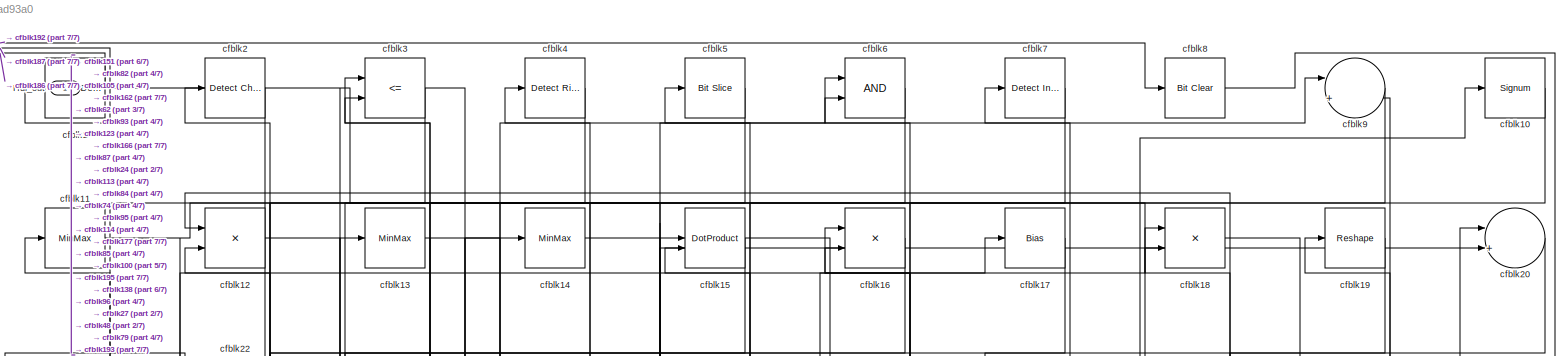
[diagram: root canvas - part 1/7, full width, top band]
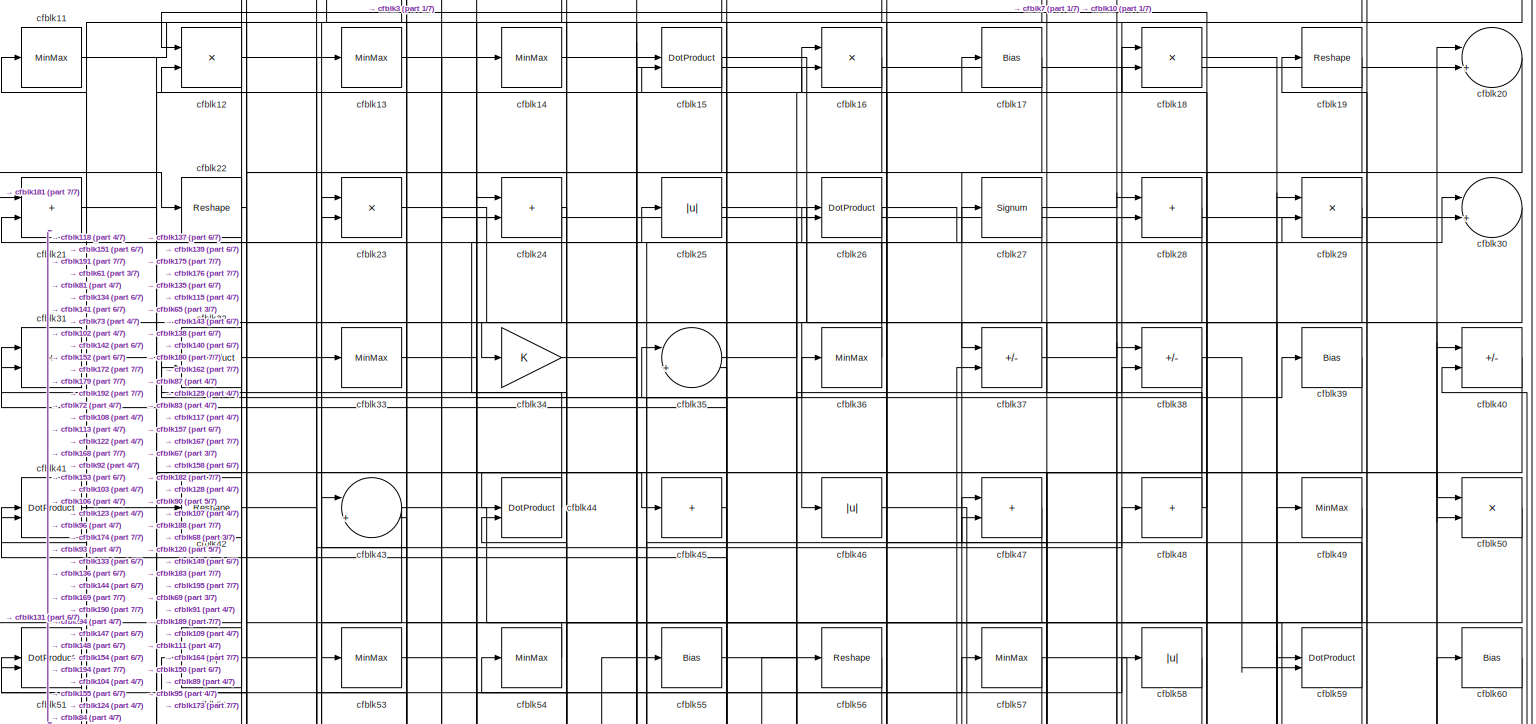
[diagram: root canvas - part 2/7, full width, top band]
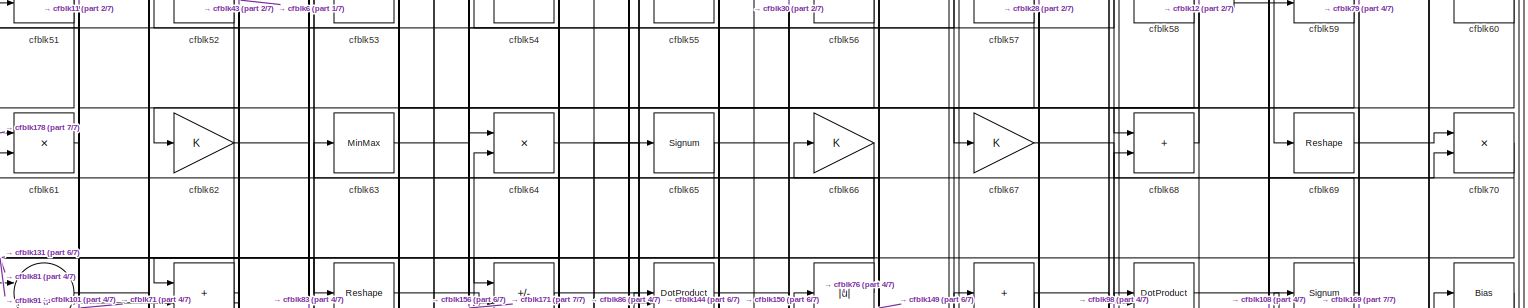
[diagram: root canvas - part 3/7, full width, top band]
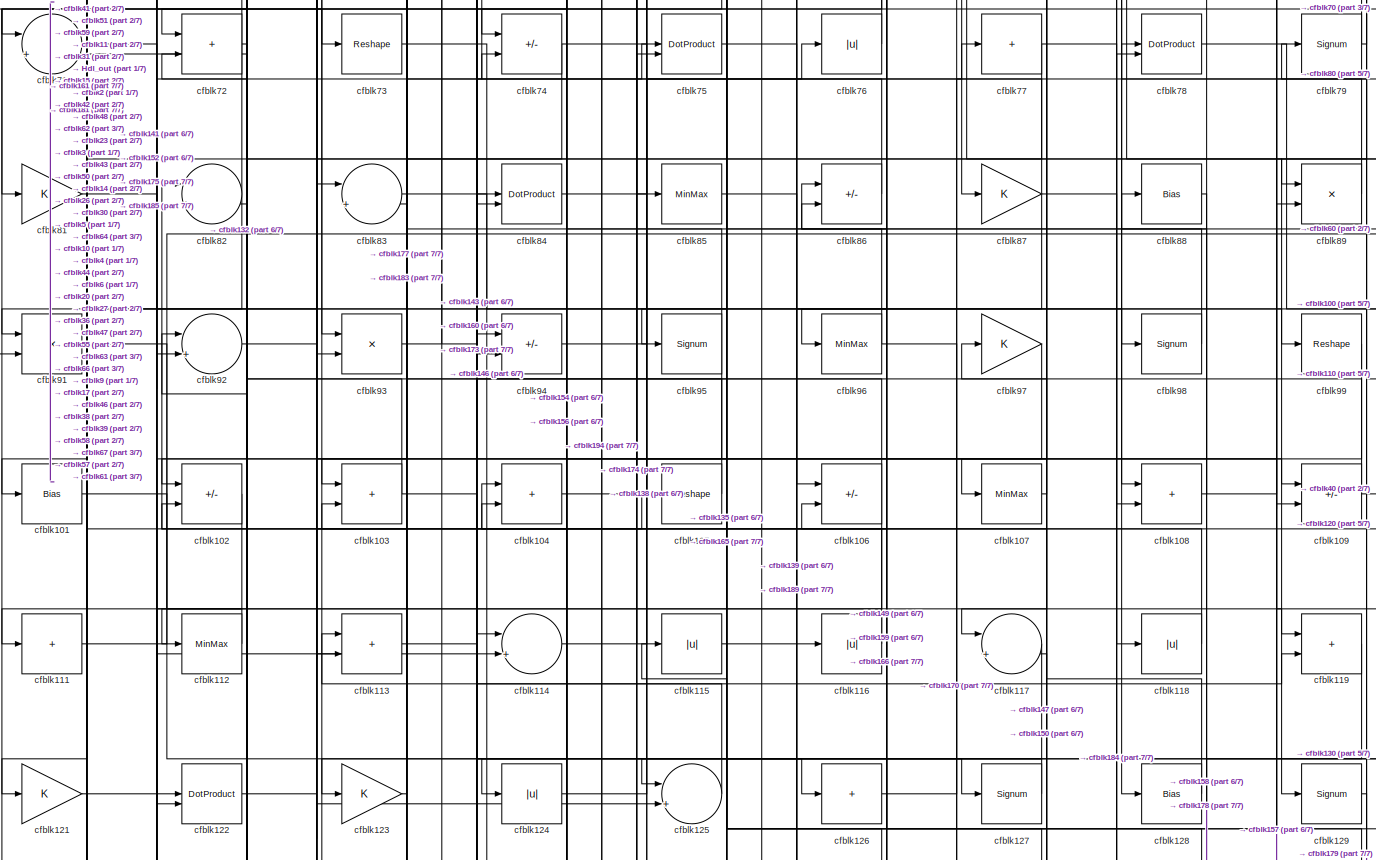
[diagram: root canvas - part 4/7, full width, middle band]
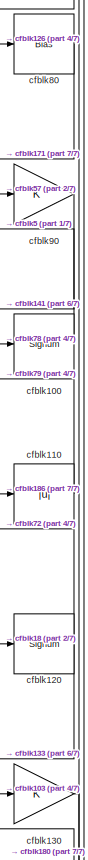
[diagram: root canvas - part 5/7, middle right region]
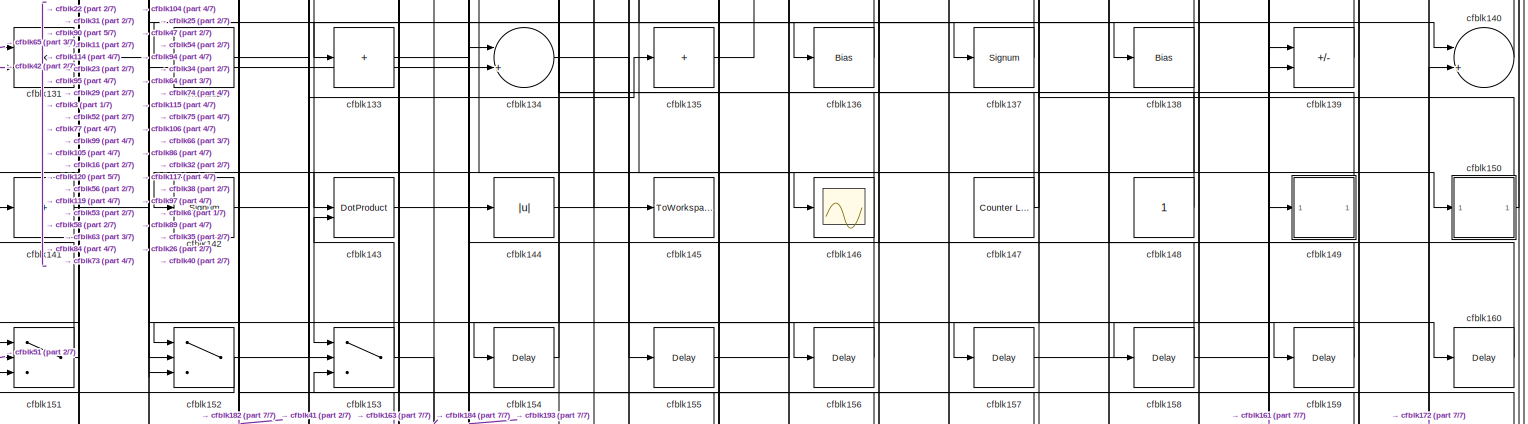
[diagram: root canvas - part 6/7, full width, bottom band]
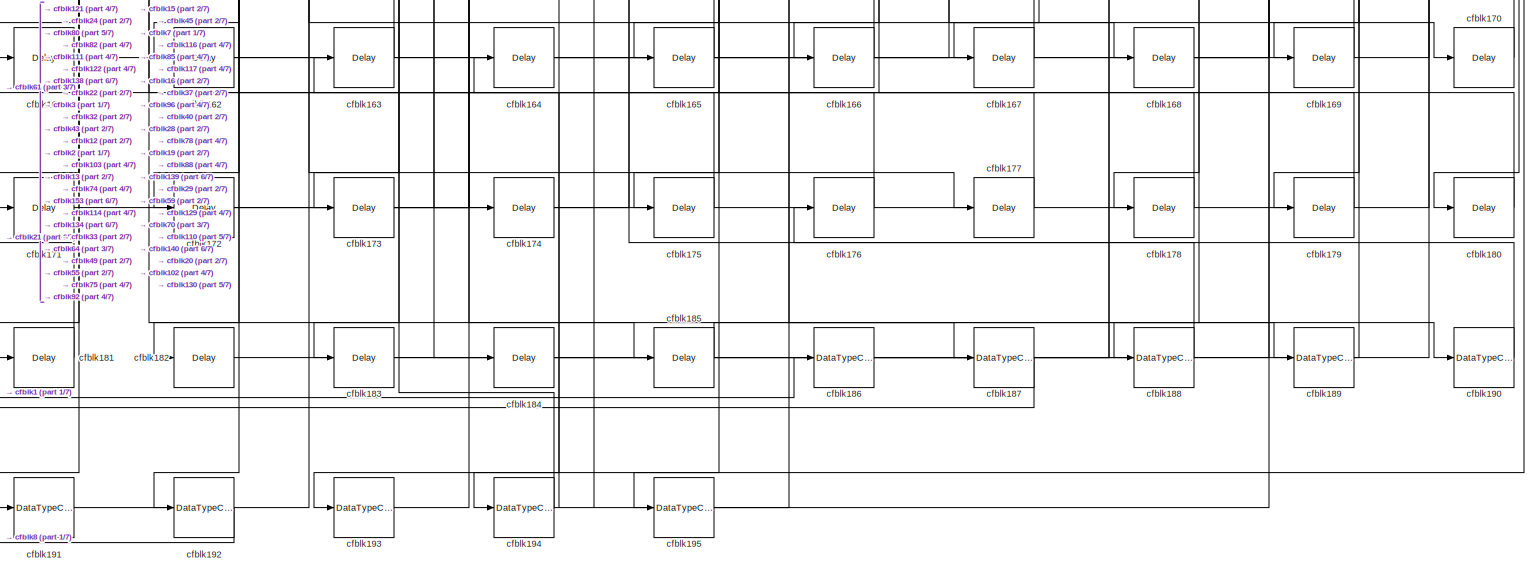
[diagram: root canvas - part 7/7, full width, bottom band]
MODEL slx_8a5da6ad93a0
KIND model
CONFIG AbsTol = auto
CONFIG EnableMultiTasking = off
CONFIG FixedStep = auto
CONFIG MaxStep = auto
CONFIG MinStep = auto
CONFIG RelTol = 1e-3
CONFIG SampleTimeConstraint = Unconstrained
CONFIG SolverName = VariableStepAuto
CONFIG StartTime = 0.0
CONFIG StopTime = 10.0
BLOCK [Outport] Hdl_out
  OutDataTypeStr = uint8
BLOCK [Reference] cfblk1  REF=simulink/Logic and Bit
Operations/Detect
Decrease
  LibrarySourceBlock = hdlsllib/Logic and Bit\nOperations/Detect\nDecrease
  SourceBlock = simulink/Logic and Bit\nOperations/Detect\nDecrease
  SourceType = Detect Decrease
BLOCK [Signum] cfblk10
BLOCK [Signum] cfblk100
BLOCK [Bias] cfblk101
  Bias = 0.0
  SaturateOnIntegerOverflow = off
BLOCK [Sum] cfblk102
  IconShape = rectangular
  Inputs = +-
  OutDataTypeStr = uint8
BLOCK [Sum] cfblk103
  IconShape = rectangular
  OutDataTypeStr = uint8
BLOCK [Sum] cfblk104
  IconShape = rectangular
  OutDataTypeStr = uint8
BLOCK [Reshape] cfblk105
BLOCK [Sum] cfblk106
  IconShape = rectangular
  Inputs = +-
  OutDataTypeStr = uint8
BLOCK [MinMax] cfblk107
  OutDataTypeStr = uint8
BLOCK [Sum] cfblk108
  IconShape = rectangular
  OutDataTypeStr = uint8
BLOCK [Sum] cfblk109
  IconShape = rectangular
  Inputs = +-
  OutDataTypeStr = uint8
BLOCK [MinMax] cfblk11
  OutDataTypeStr = uint8
BLOCK [Abs] cfblk110
  OutDataTypeStr = uint8
  SaturateOnIntegerOverflow = off
BLOCK [Sum] cfblk111
  IconShape = rectangular
  Inputs = +
  OutDataTypeStr = uint8
BLOCK [MinMax] cfblk112
  OutDataTypeStr = uint8
BLOCK [Sum] cfblk113
  IconShape = rectangular
  OutDataTypeStr = uint8
BLOCK [Sum] cfblk114
  Inputs = |++
  OutDataTypeStr = uint8
BLOCK [Abs] cfblk115
  OutDataTypeStr = uint8
  SaturateOnIntegerOverflow = off
BLOCK [Abs] cfblk116
  OutDataTypeStr = uint8
  SaturateOnIntegerOverflow = off
BLOCK [Sum] cfblk117
  Inputs = |++
  OutDataTypeStr = uint8
BLOCK [Abs] cfblk118
  OutDataTypeStr = uint8
  SaturateOnIntegerOverflow = off
BLOCK [Sum] cfblk119
  IconShape = rectangular
  OutDataTypeStr = uint8
BLOCK [Product] cfblk12
  Inputs = */
  OutDataTypeStr = uint8
  RndMeth = Zero
  SaturateOnIntegerOverflow = on
BLOCK [Signum] cfblk120
BLOCK [Gain] cfblk121
  OutDataTypeStr = uint8
BLOCK [DotProduct] cfblk122
  OutDataTypeStr = uint8
BLOCK [Gain] cfblk123
  OutDataTypeStr = uint8
BLOCK [Abs] cfblk124
  OutDataTypeStr = uint8
  SaturateOnIntegerOverflow = off
BLOCK [Sum] cfblk125
  Inputs = |++
  OutDataTypeStr = uint8
BLOCK [Sum] cfblk126
  IconShape = rectangular
  Inputs = +
  OutDataTypeStr = uint8
BLOCK [Signum] cfblk127
BLOCK [Bias] cfblk128
  Bias = 0.0
  SaturateOnIntegerOverflow = off
BLOCK [Signum] cfblk129
BLOCK [MinMax] cfblk13
  OutDataTypeStr = uint8
BLOCK [Gain] cfblk130
  OutDataTypeStr = uint8
BLOCK [Product] cfblk131
  Inputs = */
  OutDataTypeStr = uint8
  RndMeth = Zero
  SaturateOnIntegerOverflow = on
BLOCK [Sum] cfblk132
  IconShape = rectangular
  Inputs = +
  OutDataTypeStr = uint8
BLOCK [Sum] cfblk133
  IconShape = rectangular
  Inputs = +
  OutDataTypeStr = uint8
BLOCK [Sum] cfblk134
  Inputs = |++
  OutDataTypeStr = uint8
BLOCK [Sum] cfblk135
  IconShape = rectangular
  Inputs = +
  OutDataTypeStr = uint8
BLOCK [Bias] cfblk136
  Bias = 0.0
  SaturateOnIntegerOverflow = off
BLOCK [Signum] cfblk137
BLOCK [Bias] cfblk138
  Bias = 0.0
  SaturateOnIntegerOverflow = off
BLOCK [Sum] cfblk139
  IconShape = rectangular
  Inputs = +-
  OutDataTypeStr = uint8
BLOCK [MinMax] cfblk14
  OutDataTypeStr = uint8
BLOCK [Sum] cfblk140
  Inputs = |++
  OutDataTypeStr = uint8
BLOCK [Sum] cfblk141
  IconShape = rectangular
  Inputs = +
  OutDataTypeStr = uint8
BLOCK [Signum] cfblk142
BLOCK [DotProduct] cfblk143
  OutDataTypeStr = uint8
BLOCK [Abs] cfblk144
  OutDataTypeStr = uint8
  SaturateOnIntegerOverflow = off
BLOCK [ToWorkspace] cfblk145
  MaxDataPoints = inf
  SampleTime = -1
  SaveFormat = Timeseries
  VariableName = simout
BLOCK [Scope] cfblk146
  Floating = off
  NumInputPorts = 1
  ScopeSpecificationString = Simulink.scopes.TimeScopeBlockCfg('CurrentConfiguration', extmgr.ConfigurationSet(extmgr.Configuration('Core','General UI',true),extmgr.Configuration('Core','Source UI',true),extmgr.Configuration('Sources','WiredSimulink',true,'DataLoggingVariableName','ScopeData2','DataLoggingSaveFormat','Array','DataLoggingLimitDataPoints',true,'DataLoggingDecimation','1'),extmgr.Configuration('Visuals','Time Do...<+868ch>
BLOCK [Reference] cfblk147  REF=hdlsllib/Sources/Counter
Limited
  SourceBlock = hdlsllib/Sources/Counter\nLimited
  SourceType = Counter Limited
BLOCK [Constant] cfblk148
  OutDataTypeStr = uint8
  SampleTime = -1
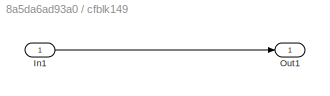
BLOCK [SubSystem] cfblk149
  LibrarySourceBlock = hdlsllib/Ports &\nSubsystems/Subsystem
BLOCK [Inport] cfblk149/In1
BLOCK [Outport] cfblk149/Out1
BLOCK [DotProduct] cfblk15
  OutDataTypeStr = uint8
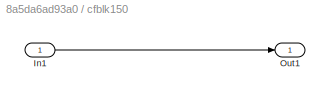
BLOCK [SubSystem] cfblk150
  LibrarySourceBlock = hdlsllib/Ports &\nSubsystems/Subsystem
BLOCK [Inport] cfblk150/In1
BLOCK [Outport] cfblk150/Out1
BLOCK [Switch] cfblk151
  InputSameDT = off
  OutDataTypeStr = uint8
  SaturateOnIntegerOverflow = off
BLOCK [Switch] cfblk152
  InputSameDT = off
  OutDataTypeStr = uint8
  SaturateOnIntegerOverflow = off
BLOCK [Switch] cfblk153
  InputSameDT = off
  OutDataTypeStr = uint8
  SaturateOnIntegerOverflow = off
BLOCK [Delay] cfblk154
  InputPortMap = u0
  SampleTime = 1
BLOCK [Delay] cfblk155
  InputPortMap = u0
  SampleTime = 1
BLOCK [Delay] cfblk156
  InputPortMap = u0
  SampleTime = 1
BLOCK [Delay] cfblk157
  InputPortMap = u0
  SampleTime = 1
BLOCK [Delay] cfblk158
  InputPortMap = u0
  SampleTime = 1
BLOCK [Delay] cfblk159
  InputPortMap = u0
  SampleTime = 1
BLOCK [Product] cfblk16
  Inputs = */
  OutDataTypeStr = uint8
  RndMeth = Zero
  SaturateOnIntegerOverflow = on
BLOCK [Delay] cfblk160
  InputPortMap = u0
  SampleTime = 1
BLOCK [Delay] cfblk161
  InputPortMap = u0
  SampleTime = 1
BLOCK [Delay] cfblk162
  InputPortMap = u0
  SampleTime = 1
BLOCK [Delay] cfblk163
  InputPortMap = u0
  SampleTime = 1
BLOCK [Delay] cfblk164
  InputPortMap = u0
  SampleTime = 1
BLOCK [Delay] cfblk165
  InputPortMap = u0
  SampleTime = 1
BLOCK [Delay] cfblk166
  InputPortMap = u0
  SampleTime = 1
BLOCK [Delay] cfblk167
  InputPortMap = u0
  SampleTime = 1
BLOCK [Delay] cfblk168
  InputPortMap = u0
  SampleTime = 1
BLOCK [Delay] cfblk169
  InputPortMap = u0
  SampleTime = 1
BLOCK [Bias] cfblk17
  Bias = 0.0
  SaturateOnIntegerOverflow = off
BLOCK [Delay] cfblk170
  InputPortMap = u0
  SampleTime = 1
BLOCK [Delay] cfblk171
  InputPortMap = u0
  SampleTime = 1
BLOCK [Delay] cfblk172
  InputPortMap = u0
  SampleTime = 1
BLOCK [Delay] cfblk173
  InputPortMap = u0
  SampleTime = 1
BLOCK [Delay] cfblk174
  InputPortMap = u0
  SampleTime = 1
BLOCK [Delay] cfblk175
  InputPortMap = u0
  SampleTime = 1
BLOCK [Delay] cfblk176
  InputPortMap = u0
  SampleTime = 1
BLOCK [Delay] cfblk177
  InputPortMap = u0
  SampleTime = 1
BLOCK [Delay] cfblk178
  InputPortMap = u0
  SampleTime = 1
BLOCK [Delay] cfblk179
  InputPortMap = u0
  SampleTime = 1
BLOCK [Product] cfblk18
  Inputs = */
  OutDataTypeStr = uint8
  RndMeth = Zero
  SaturateOnIntegerOverflow = on
BLOCK [Delay] cfblk180
  InputPortMap = u0
  SampleTime = 1
BLOCK [Delay] cfblk181
  InputPortMap = u0
  SampleTime = 1
BLOCK [Delay] cfblk182
  InputPortMap = u0
  SampleTime = 1
BLOCK [Delay] cfblk183
  InputPortMap = u0
  SampleTime = 1
BLOCK [Delay] cfblk184
  InputPortMap = u0
  SampleTime = 1
BLOCK [Delay] cfblk185
  InputPortMap = u0
  SampleTime = 1
BLOCK [DataTypeConversion] cfblk186
  OutDataTypeStr = uint8
  RndMeth = Floor
  SaturateOnIntegerOverflow = off
BLOCK [DataTypeConversion] cfblk187
  OutDataTypeStr = uint8
  RndMeth = Floor
  SaturateOnIntegerOverflow = off
BLOCK [DataTypeConversion] cfblk188
  OutDataTypeStr = uint8
  RndMeth = Floor
  SaturateOnIntegerOverflow = off
BLOCK [DataTypeConversion] cfblk189
  OutDataTypeStr = uint8
  RndMeth = Floor
  SaturateOnIntegerOverflow = off
BLOCK [Reshape] cfblk19
BLOCK [DataTypeConversion] cfblk190
  OutDataTypeStr = uint8
  RndMeth = Floor
  SaturateOnIntegerOverflow = off
BLOCK [DataTypeConversion] cfblk191
  OutDataTypeStr = uint8
  RndMeth = Floor
  SaturateOnIntegerOverflow = off
BLOCK [DataTypeConversion] cfblk192
  OutDataTypeStr = uint8
  RndMeth = Floor
  SaturateOnIntegerOverflow = off
BLOCK [DataTypeConversion] cfblk193
  OutDataTypeStr = uint8
  RndMeth = Floor
  SaturateOnIntegerOverflow = off
BLOCK [DataTypeConversion] cfblk194
  OutDataTypeStr = uint8
  RndMeth = Floor
  SaturateOnIntegerOverflow = off
BLOCK [DataTypeConversion] cfblk195
  OutDataTypeStr = uint8
  RndMeth = Floor
  SaturateOnIntegerOverflow = off
BLOCK [Reference] cfblk2  REF=simulink/Logic and Bit
Operations/Detect
Change
  LibrarySourceBlock = hdlsllib/Logic and Bit\nOperations/Detect\nChange
  SourceBlock = simulink/Logic and Bit\nOperations/Detect\nChange
  SourceType = Detect Change
BLOCK [Sum] cfblk20
  Inputs = |++
  OutDataTypeStr = uint8
BLOCK [Sum] cfblk21
  IconShape = rectangular
  OutDataTypeStr = uint8
BLOCK [Reshape] cfblk22
BLOCK [Product] cfblk23
  Inputs = */
  OutDataTypeStr = uint8
  RndMeth = Zero
  SaturateOnIntegerOverflow = on
BLOCK [Sum] cfblk24
  IconShape = rectangular
  OutDataTypeStr = uint8
BLOCK [Abs] cfblk25
  OutDataTypeStr = uint8
  SaturateOnIntegerOverflow = off
BLOCK [DotProduct] cfblk26
  OutDataTypeStr = uint8
BLOCK [Signum] cfblk27
BLOCK [Sum] cfblk28
  IconShape = rectangular
  OutDataTypeStr = uint8
BLOCK [Product] cfblk29
  Inputs = */
  OutDataTypeStr = uint8
  RndMeth = Zero
  SaturateOnIntegerOverflow = on
BLOCK [RelationalOperator] cfblk3
  InputSameDT = off
  Operator = <=
  OutDataTypeStr = boolean
BLOCK [Sum] cfblk30
  Inputs = |++
  OutDataTypeStr = uint8
BLOCK [Sum] cfblk31
  IconShape = rectangular
  OutDataTypeStr = uint8
BLOCK [DotProduct] cfblk32
  OutDataTypeStr = uint8
BLOCK [MinMax] cfblk33
  OutDataTypeStr = uint8
BLOCK [Gain] cfblk34
  OutDataTypeStr = uint8
BLOCK [Sum] cfblk35
  Inputs = |++
  OutDataTypeStr = uint8
BLOCK [MinMax] cfblk36
  OutDataTypeStr = uint8
BLOCK [Sum] cfblk37
  IconShape = rectangular
  Inputs = +-
  OutDataTypeStr = uint8
BLOCK [Sum] cfblk38
  IconShape = rectangular
  Inputs = +-
  OutDataTypeStr = uint8
BLOCK [Bias] cfblk39
  Bias = 0.0
  SaturateOnIntegerOverflow = off
BLOCK [Reference] cfblk4  REF=hdlsllib/Logic and Bit
Operations/Detect Rise
Positive
  SourceBlock = hdlsllib/Logic and Bit\nOperations/Detect Rise\nPositive
  SourceType = Detect Rise Positive
BLOCK [Sum] cfblk40
  IconShape = rectangular
  Inputs = +-
  OutDataTypeStr = uint8
BLOCK [DotProduct] cfblk41
  OutDataTypeStr = uint8
BLOCK [Reshape] cfblk42
BLOCK [Sum] cfblk43
  Inputs = |++
  OutDataTypeStr = uint8
BLOCK [DotProduct] cfblk44
  OutDataTypeStr = uint8
BLOCK [Sum] cfblk45
  IconShape = rectangular
  Inputs = +
  OutDataTypeStr = uint8
BLOCK [Abs] cfblk46
  OutDataTypeStr = uint8
  SaturateOnIntegerOverflow = off
BLOCK [Sum] cfblk47
  IconShape = rectangular
  OutDataTypeStr = uint8
BLOCK [Sum] cfblk48
  IconShape = rectangular
  Inputs = +
  OutDataTypeStr = uint8
BLOCK [MinMax] cfblk49
  OutDataTypeStr = uint8
BLOCK [Reference] cfblk5  REF=hdlsllib/Logic and Bit
Operations/Bit Slice
  SourceBlock = hdlsllib/Logic and Bit\nOperations/Bit Slice
  SourceType = Bit Slice
BLOCK [Product] cfblk50
  Inputs = */
  OutDataTypeStr = uint8
  RndMeth = Zero
  SaturateOnIntegerOverflow = on
BLOCK [DotProduct] cfblk51
  OutDataTypeStr = uint8
BLOCK [Abs] cfblk52
  OutDataTypeStr = uint8
  SaturateOnIntegerOverflow = off
BLOCK [MinMax] cfblk53
  OutDataTypeStr = uint8
BLOCK [MinMax] cfblk54
  OutDataTypeStr = uint8
BLOCK [Bias] cfblk55
  Bias = 0.0
  SaturateOnIntegerOverflow = off
BLOCK [Reshape] cfblk56
BLOCK [MinMax] cfblk57
  OutDataTypeStr = uint8
BLOCK [Abs] cfblk58
  OutDataTypeStr = uint8
  SaturateOnIntegerOverflow = off
BLOCK [DotProduct] cfblk59
  OutDataTypeStr = uint8
BLOCK [Logic] cfblk6
  AllPortsSameDT = off
  OutDataTypeStr = boolean
BLOCK [Bias] cfblk60
  Bias = 0.0
  SaturateOnIntegerOverflow = off
BLOCK [Product] cfblk61
  Inputs = */
  OutDataTypeStr = uint8
  RndMeth = Zero
  SaturateOnIntegerOverflow = on
BLOCK [Gain] cfblk62
  OutDataTypeStr = uint8
BLOCK [MinMax] cfblk63
  OutDataTypeStr = uint8
BLOCK [Product] cfblk64
  Inputs = */
  OutDataTypeStr = uint8
  RndMeth = Zero
  SaturateOnIntegerOverflow = on
BLOCK [Signum] cfblk65
BLOCK [Gain] cfblk66
  OutDataTypeStr = uint8
BLOCK [Gain] cfblk67
  OutDataTypeStr = uint8
BLOCK [Sum] cfblk68
  IconShape = rectangular
  OutDataTypeStr = uint8
BLOCK [Reshape] cfblk69
BLOCK [Reference] cfblk7  REF=simulink/Logic and Bit
Operations/Detect
Increase
  LibrarySourceBlock = hdlsllib/Logic and Bit\nOperations/Detect\nIncrease
  SourceBlock = simulink/Logic and Bit\nOperations/Detect\nIncrease
  SourceType = Detect Increase
BLOCK [Product] cfblk70
  Inputs = */
  OutDataTypeStr = uint8
  RndMeth = Zero
  SaturateOnIntegerOverflow = on
BLOCK [Sum] cfblk71
  Inputs = |++
  OutDataTypeStr = uint8
BLOCK [Sum] cfblk72
  IconShape = rectangular
  OutDataTypeStr = uint8
BLOCK [Reshape] cfblk73
BLOCK [Sum] cfblk74
  IconShape = rectangular
  Inputs = +-
  OutDataTypeStr = uint8
BLOCK [DotProduct] cfblk75
  OutDataTypeStr = uint8
BLOCK [Abs] cfblk76
  OutDataTypeStr = uint8
  SaturateOnIntegerOverflow = off
BLOCK [Sum] cfblk77
  IconShape = rectangular
  Inputs = +
  OutDataTypeStr = uint8
BLOCK [DotProduct] cfblk78
  OutDataTypeStr = uint8
BLOCK [Signum] cfblk79
BLOCK [Reference] cfblk8  REF=simulink/Logic and Bit
Operations/Bit Clear
  LibrarySourceBlock = hdlsllib/Logic and Bit\nOperations/Bit Clear
  SourceBlock = simulink/Logic and Bit\nOperations/Bit Clear
  SourceType = Bit Clear
BLOCK [Bias] cfblk80
  Bias = 0.0
  SaturateOnIntegerOverflow = off
BLOCK [Gain] cfblk81
  OutDataTypeStr = uint8
BLOCK [Sum] cfblk82
  Inputs = |++
  OutDataTypeStr = uint8
BLOCK [Sum] cfblk83
  Inputs = |++
  OutDataTypeStr = uint8
BLOCK [DotProduct] cfblk84
  OutDataTypeStr = uint8
BLOCK [MinMax] cfblk85
  OutDataTypeStr = uint8
BLOCK [Sum] cfblk86
  IconShape = rectangular
  Inputs = +-
  OutDataTypeStr = uint8
BLOCK [Gain] cfblk87
  OutDataTypeStr = uint8
BLOCK [Bias] cfblk88
  Bias = 0.0
  SaturateOnIntegerOverflow = off
BLOCK [Product] cfblk89
  Inputs = */
  OutDataTypeStr = uint8
  RndMeth = Zero
  SaturateOnIntegerOverflow = on
BLOCK [Sum] cfblk9
  Inputs = |++
  OutDataTypeStr = uint8
BLOCK [Gain] cfblk90
  OutDataTypeStr = uint8
BLOCK [Product] cfblk91
  Inputs = */
  OutDataTypeStr = uint8
  RndMeth = Zero
  SaturateOnIntegerOverflow = on
BLOCK [Sum] cfblk92
  Inputs = |++
  OutDataTypeStr = uint8
BLOCK [Product] cfblk93
  Inputs = */
  OutDataTypeStr = uint8
  RndMeth = Zero
  SaturateOnIntegerOverflow = on
BLOCK [Sum] cfblk94
  IconShape = rectangular
  Inputs = +-
  OutDataTypeStr = uint8
BLOCK [Signum] cfblk95
BLOCK [MinMax] cfblk96
  OutDataTypeStr = uint8
BLOCK [Gain] cfblk97
  OutDataTypeStr = uint8
BLOCK [Signum] cfblk98
BLOCK [Reshape] cfblk99
LINE cfblk100:1 -> cfblk5:1
LINE cfblk101:1 -> cfblk119:1
LINE cfblk102:1 -> cfblk112:1
NET cfblk103:1 -> cfblk130:1, cfblk71:2
NET cfblk104:1 -> cfblk20:2, cfblk47:1
LINE cfblk105:1 -> cfblk2:1
NET cfblk106:1 -> cfblk122:2, cfblk43:1
LINE cfblk107:1 -> cfblk47:2
NET cfblk108:1 -> cfblk70:2, cfblk88:1
NET cfblk109:1 -> cfblk40:1, cfblk44:2
NET cfblk10:1 -> cfblk74:1, cfblk93:1
LINE cfblk110:1 -> cfblk79:1
NET cfblk111:1 -> cfblk185:1, cfblk60:1
LINE cfblk112:1 -> cfblk111:1
NET cfblk113:1 -> cfblk126:1, cfblk9:1
NET cfblk114:1 -> cfblk6:2, cfblk77:1
LINE cfblk115:1 -> cfblk38:2
LINE cfblk116:1 -> cfblk82:1
NET cfblk117:1 -> cfblk165:1, cfblk166:1
LINE cfblk118:1 -> cfblk51:1
LINE cfblk119:1 -> cfblk158:1
NET cfblk11:1 -> cfblk128:1, cfblk153:2
NET cfblk120:1 -> cfblk133:1, cfblk72:2
NET cfblk121:1 -> cfblk181:1, cfblk74:2
NET cfblk122:1 -> cfblk125:2, cfblk57:1
LINE cfblk123:1 -> cfblk23:1
LINE cfblk124:1 -> cfblk36:1
LINE cfblk125:1 -> cfblk113:1
LINE cfblk126:1 -> cfblk80:1
LINE cfblk127:1 -> cfblk125:1
LINE cfblk128:1 -> cfblk104:1
LINE cfblk129:1 -> cfblk179:1
LINE cfblk12:1 -> cfblk168:1
LINE cfblk130:1 -> cfblk180:1
LINE cfblk131:1 -> cfblk137:1
LINE cfblk132:1 -> cfblk159:1
LINE cfblk133:1 -> cfblk58:1
LINE cfblk134:1 -> cfblk160:1
NET cfblk135:1 -> cfblk115:1, cfblk56:1
LINE cfblk136:1 -> cfblk35:2
NET cfblk137:1 -> cfblk31:1, cfblk32:1
NET cfblk138:1 -> cfblk182:1, cfblk41:2, cfblk6:1
LINE cfblk139:1 -> cfblk35:1
NET cfblk13:1 -> cfblk173:1, cfblk174:1, cfblk45:1
LINE cfblk140:1 -> cfblk26:1
NET cfblk141:1 -> cfblk114:2, cfblk23:2
LINE cfblk142:1 -> cfblk135:1
NET cfblk143:1 -> cfblk119:2, cfblk75:1
NET cfblk144:1 -> cfblk145:1, cfblk65:1
NET cfblk147:1 -> cfblk117:2, cfblk54:1
LINE cfblk148:1 -> cfblk25:1
LINE cfblk149/In1:1 -> cfblk149/Out1:1
NET cfblk149:1 -> cfblk106:2, cfblk66:1
LINE cfblk14:1 -> cfblk109:1
LINE cfblk150/In1:1 -> cfblk150/Out1:1
NET cfblk150:1 -> cfblk40:2, cfblk97:1
NET cfblk151:1 -> cfblk22:1, cfblk31:2
NET cfblk152:1 -> cfblk105:1, cfblk151:3, cfblk52:1
NET cfblk153:1 -> cfblk143:2, cfblk184:1
LINE cfblk154:1 -> cfblk104:2
LINE cfblk155:1 -> cfblk26:2
LINE cfblk156:1 -> cfblk94:1
LINE cfblk157:1 -> cfblk89:2
LINE cfblk158:1 -> cfblk38:1
LINE cfblk159:1 -> cfblk86:2
NET cfblk15:1 -> cfblk50:1, cfblk72:1
LINE cfblk160:1 -> cfblk84:1
LINE cfblk161:1 -> cfblk139:1
LINE cfblk162:1 -> cfblk37:2
LINE cfblk163:1 -> cfblk153:3
LINE cfblk164:1 -> cfblk20:1
LINE cfblk165:1 -> cfblk92:1
LINE cfblk166:1 -> cfblk3:2
LINE cfblk167:1 -> cfblk43:2
LINE cfblk168:1 -> cfblk29:1
LINE cfblk169:1 -> cfblk24:1
LINE cfblk16:1 -> cfblk153:1
LINE cfblk170:1 -> cfblk102:2
LINE cfblk171:1 -> cfblk64:1
LINE cfblk172:1 -> cfblk140:2
LINE cfblk173:1 -> cfblk114:1
LINE cfblk174:1 -> cfblk75:2
LINE cfblk175:1 -> cfblk122:1
LINE cfblk176:1 -> cfblk15:2
LINE cfblk177:1 -> cfblk103:2
LINE cfblk178:1 -> cfblk61:1
LINE cfblk179:1 -> cfblk32:2
LINE cfblk17:1 -> cfblk87:1
LINE cfblk180:1 -> cfblk16:2
LINE cfblk181:1 -> cfblk21:1
LINE cfblk182:1 -> cfblk28:1
LINE cfblk183:1 -> cfblk59:1
LINE cfblk184:1 -> cfblk78:2
LINE cfblk185:1 -> cfblk187:1
LINE cfblk186:1 -> cfblk110:1
LINE cfblk187:1 -> cfblk1:1
LINE cfblk188:1 -> cfblk176:1
LINE cfblk189:1 -> cfblk19:1
LINE cfblk18:1 -> cfblk120:1
LINE cfblk190:1 -> cfblk15:1
LINE cfblk191:1 -> cfblk33:1
LINE cfblk192:1 -> cfblk8:1
LINE cfblk193:1 -> cfblk134:1
NET cfblk194:1 -> cfblk116:1, cfblk163:1, cfblk164:1, cfblk55:1
LINE cfblk195:1 -> cfblk49:1
LINE cfblk19:1 -> cfblk188:1
LINE cfblk1:1 -> cfblk186:1
LINE cfblk20:1 -> cfblk102:1
NET cfblk21:1 -> cfblk42:1, cfblk50:2
LINE cfblk22:1 -> cfblk192:1
LINE cfblk23:1 -> cfblk46:1
NET cfblk24:1 -> cfblk191:1, cfblk44:1
LINE cfblk25:1 -> cfblk149:1
NET cfblk26:1 -> cfblk29:2, cfblk34:1, cfblk94:2
NET cfblk27:1 -> cfblk10:1, cfblk37:1
LINE cfblk28:1 -> cfblk67:1
LINE cfblk29:1 -> cfblk142:1
NET cfblk2:1 -> cfblk177:1, cfblk85:1
LINE cfblk30:1 -> cfblk68:1
NET cfblk31:1 -> cfblk18:2, cfblk73:1
NET cfblk32:1 -> cfblk140:1, cfblk152:2
LINE cfblk33:1 -> cfblk190:1
LINE cfblk34:1 -> cfblk155:1
LINE cfblk35:1 -> cfblk17:1
LINE cfblk36:1 -> cfblk21:2
LINE cfblk37:1 -> cfblk28:2
NET cfblk38:1 -> cfblk113:2, cfblk157:1, cfblk59:2
LINE cfblk39:1 -> cfblk117:1
NET cfblk3:1 -> cfblk151:1, cfblk162:1, cfblk24:2
LINE cfblk40:1 -> cfblk167:1
LINE cfblk41:1 -> cfblk134:2
NET cfblk42:1 -> cfblk108:2, cfblk131:2
NET cfblk43:1 -> cfblk172:1, cfblk69:1
LINE cfblk44:1 -> cfblk12:2
LINE cfblk45:1 -> cfblk175:1
LINE cfblk46:1 -> cfblk129:1
LINE cfblk47:1 -> cfblk154:1
NET cfblk48:1 -> cfblk18:1, cfblk7:1
LINE cfblk49:1 -> cfblk194:1
LINE cfblk4:1 -> cfblk123:1
LINE cfblk50:1 -> cfblk103:1
LINE cfblk51:1 -> cfblk151:2
LINE cfblk52:1 -> cfblk13:1
NET cfblk53:1 -> cfblk136:1, cfblk144:1
LINE cfblk54:1 -> cfblk53:1
LINE cfblk55:1 -> cfblk106:1
LINE cfblk56:1 -> cfblk143:1
NET cfblk57:1 -> cfblk83:2, cfblk90:1
LINE cfblk58:1 -> cfblk107:1
NET cfblk59:1 -> cfblk16:1, cfblk91:1
LINE cfblk5:1 -> cfblk84:2
NET cfblk60:1 -> cfblk89:1, cfblk95:1
LINE cfblk61:1 -> cfblk11:1
LINE cfblk62:1 -> cfblk83:1
LINE cfblk63:1 -> cfblk156:1
LINE cfblk64:1 -> cfblk150:1
NET cfblk65:1 -> cfblk131:1, cfblk30:1
NET cfblk66:1 -> cfblk101:1, cfblk71:1
LINE cfblk67:1 -> cfblk98:1
LINE cfblk68:1 -> cfblk12:1
LINE cfblk69:1 -> cfblk70:1
LINE cfblk6:1 -> cfblk62:1
NET cfblk70:1 -> cfblk169:1, cfblk68:2, cfblk81:1, cfblk91:2
LINE cfblk71:1 -> cfblk92:2
LINE cfblk72:1 -> cfblk82:2
LINE cfblk73:1 -> cfblk146:1
NET cfblk74:1 -> cfblk138:1, cfblk183:1
NET cfblk75:1 -> cfblk139:2, cfblk99:1
LINE cfblk76:1 -> cfblk63:1
NET cfblk77:1 -> cfblk118:1, cfblk152:1
LINE cfblk78:1 -> cfblk100:1
NET cfblk79:1 -> cfblk61:2, cfblk9:2
LINE cfblk7:1 -> cfblk195:1
LINE cfblk80:1 -> cfblk171:1
NET cfblk81:1 -> cfblk41:1, cfblk93:2
NET cfblk82:1 -> Hdl_out:1, cfblk161:1
LINE cfblk83:1 -> cfblk108:1
LINE cfblk84:1 -> cfblk27:1
LINE cfblk85:1 -> cfblk189:1
LINE cfblk86:1 -> cfblk64:2
NET cfblk87:1 -> cfblk109:2, cfblk121:1, cfblk3:1
LINE cfblk88:1 -> cfblk178:1
LINE cfblk89:1 -> cfblk78:1
LINE cfblk8:1 -> cfblk193:1
LINE cfblk90:1 -> cfblk141:1
LINE cfblk91:1 -> cfblk127:1
LINE cfblk92:1 -> cfblk48:1
NET cfblk93:1 -> cfblk14:1, cfblk30:2, cfblk39:1
LINE cfblk94:1 -> cfblk76:1
NET cfblk95:1 -> cfblk152:3, cfblk4:1
NET cfblk96:1 -> cfblk170:1, cfblk51:2
LINE cfblk97:1 -> cfblk124:1
LINE cfblk98:1 -> cfblk86:1
LINE cfblk99:1 -> cfblk132:1
LINE cfblk9:1 -> cfblk96:1
note: NET lines group one-source signal fan-out (src -> all destinations, sorted); 1:1 wires keep LINE
